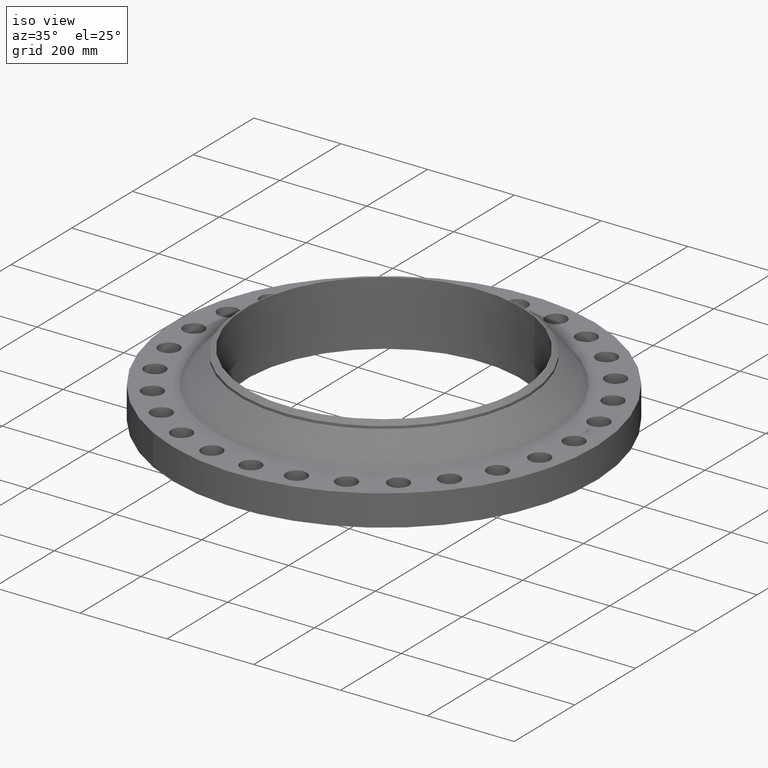
[diagram: clean part render]
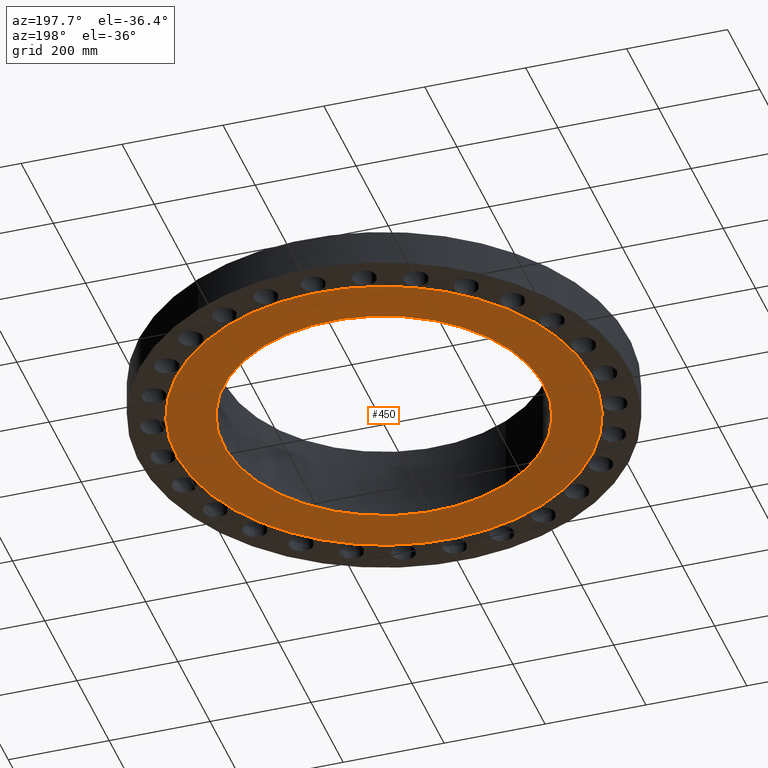
[diagram: tour spotlight — one face highlighted and labeled with its STEP entity id]
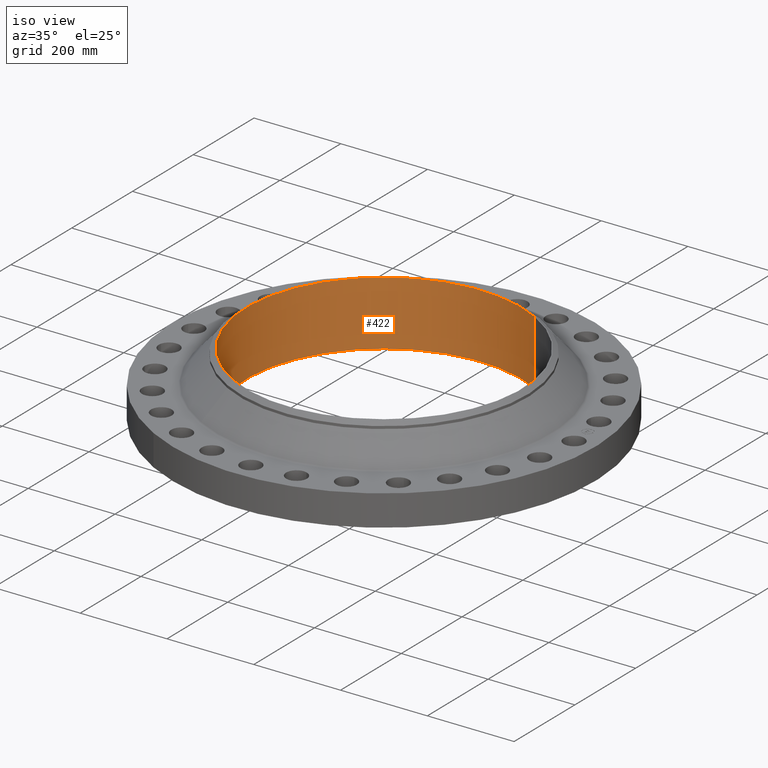
[diagram: tour spotlight — one face highlighted and labeled with its STEP entity id]
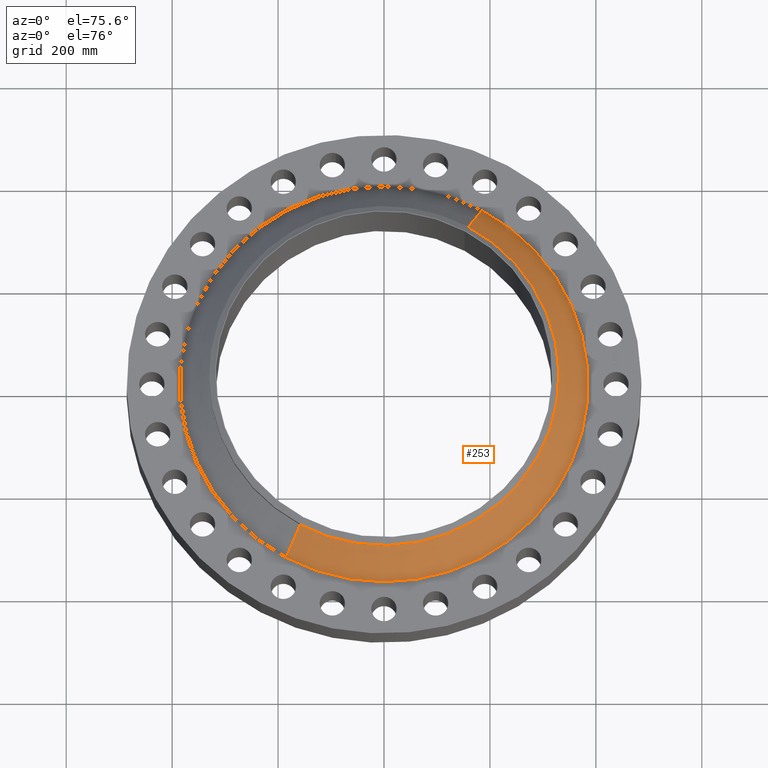
[diagram: tour spotlight — one face highlighted and labeled with its STEP entity id]
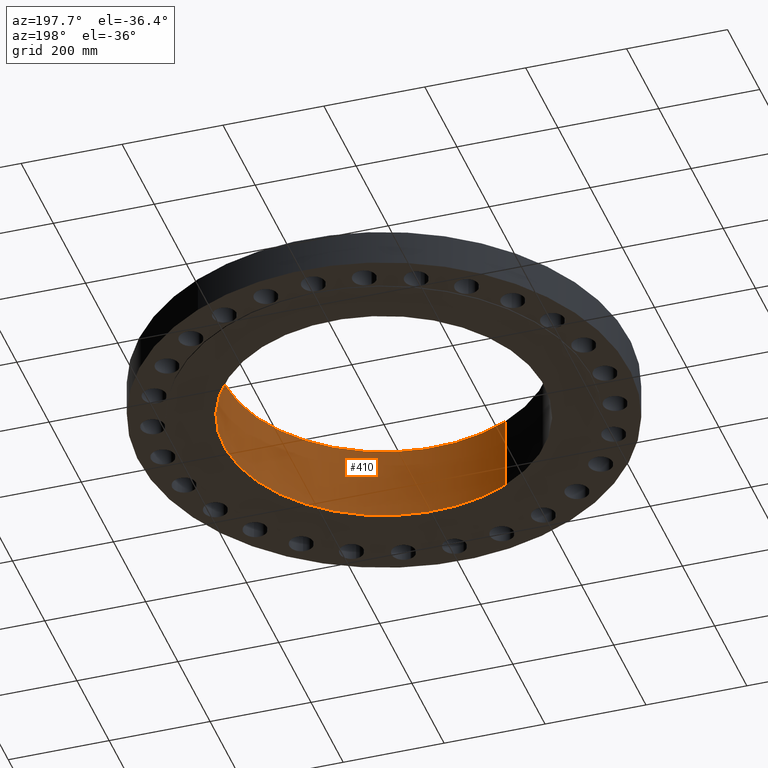
[diagram: tour spotlight — one face highlighted and labeled with its STEP entity id]
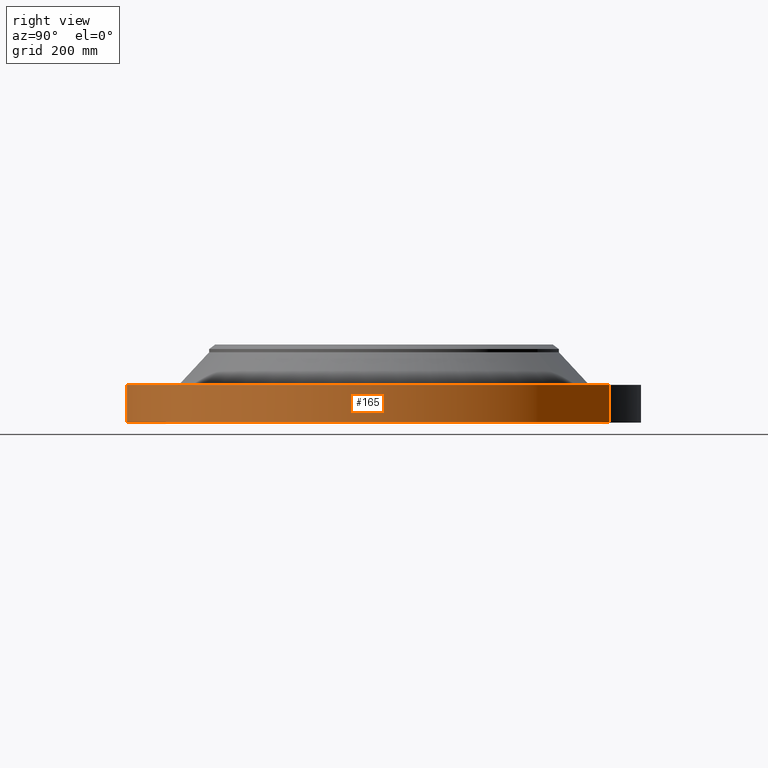
[diagram: tour spotlight — one face highlighted and labeled with its STEP entity id]
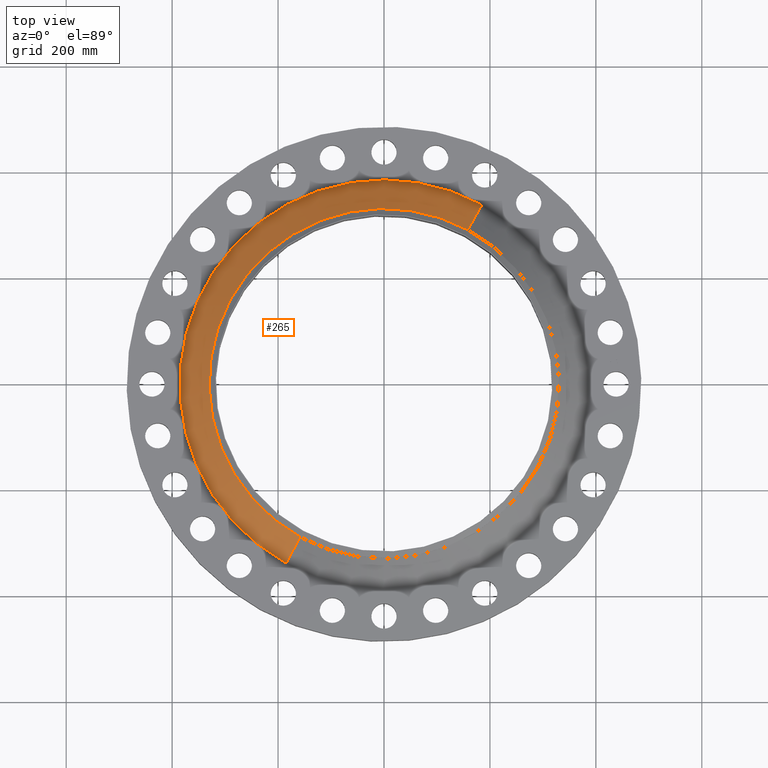
[diagram: tour spotlight — one face highlighted and labeled with its STEP entity id]
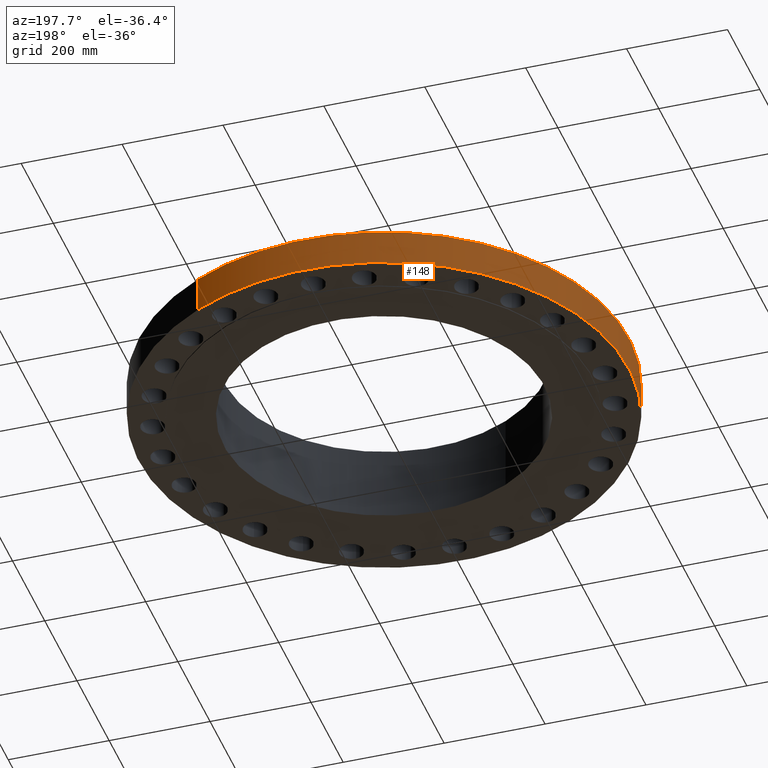
[diagram: tour spotlight — one face highlighted and labeled with its STEP entity id]
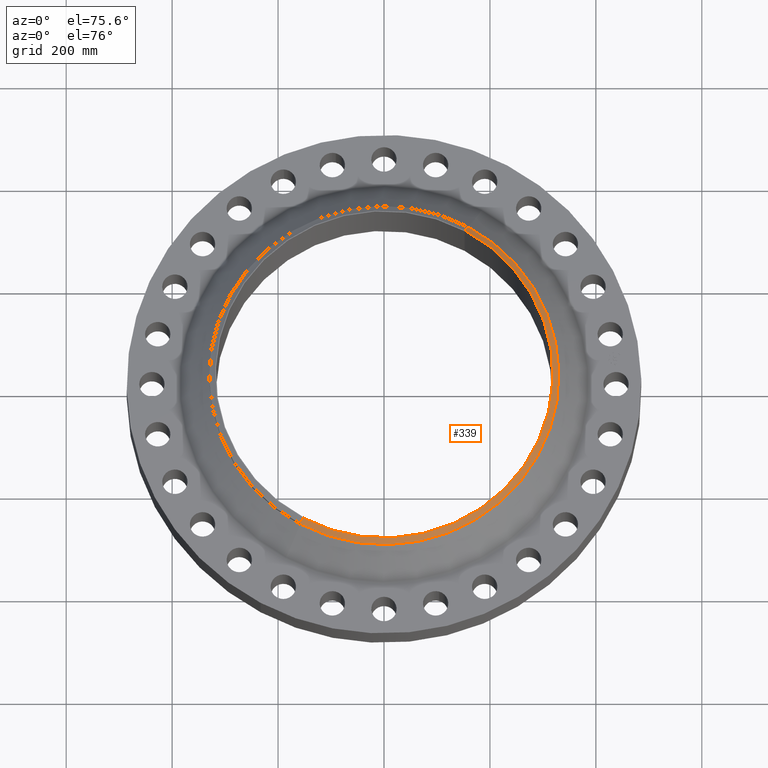
[diagram: tour spotlight — one face highlighted and labeled with its STEP entity id]
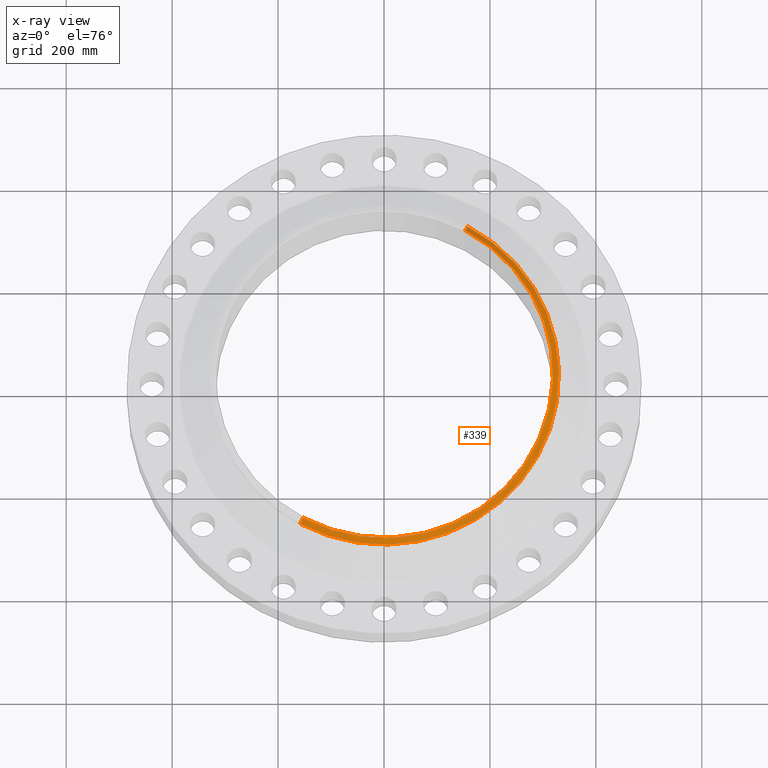
[diagram: x-ray of the same camera — body ghosted, this tour face saturated]
A machine part: a face-by-face anatomy tour. The part has 459 B-rep faces; the first image is the clean iso view, then the 8 largest visible faces are spotlighted one at a time (largest first), each with its STEP entity span.

Face 1 — auxiliary view, entity #450. In plain terms, the highlighted planar face has unit normal (0, 0, -1).
Definition (entity closure, byte-faithful):
#389=CARTESIAN_POINT('Vertex',(152.217608507,278.632463401,-1.58750000001)) ;
#392=CARTESIAN_POINT('Axis2P3D Location',(0.,0.,-1.58750000001)) ;
#396=CARTESIAN_POINT('Vertex',(-152.217608507,-278.632463401,-1.58750000001)) ;
#411=CARTESIAN_POINT('Axis2P3D Location',(0.,0.,-1.58750000001)) ;
#423=CARTESIAN_POINT('Axis2P3D Location',(0.,317.500000001,-1.58750000001)) ;
#428=CARTESIAN_POINT('Axis2P3D Location',(0.,0.,-1.58750000001)) ;
#432=CARTESIAN_POINT('Vertex',(-197.517568799,-361.55348451,-1.58750000001)) ;
#434=CARTESIAN_POINT('Vertex',(197.517568799,361.55348451,-1.58750000001)) ;
#437=CARTESIAN_POINT('Axis2P3D Location',(0.,0.,-1.58750000001)) ;
#393=DIRECTION('Axis2P3D Direction',(0.,0.,-1.)) ;
#412=DIRECTION('Axis2P3D Direction',(0.,0.,-1.)) ;
#424=DIRECTION('Axis2P3D Direction',(0.,0.,-1.)) ;
#425=DIRECTION('Axis2P3D XDirection',(1.,0.,0.)) ;
#429=DIRECTION('Axis2P3D Direction',(0.,0.,-1.)) ;
#438=DIRECTION('Axis2P3D Direction',(0.,0.,-1.)) ;
#394=AXIS2_PLACEMENT_3D('Circle Axis2P3D',#392,#393,$) ;
#413=AXIS2_PLACEMENT_3D('Circle Axis2P3D',#411,#412,$) ;
#426=AXIS2_PLACEMENT_3D('Plane Axis2P3D',#423,#424,#425) ;
#430=AXIS2_PLACEMENT_3D('Circle Axis2P3D',#428,#429,$) ;
#439=AXIS2_PLACEMENT_3D('Circle Axis2P3D',#437,#438,$) ;
#443=ORIENTED_EDGE('',*,*,#436,.T.) ;
#444=ORIENTED_EDGE('',*,*,#441,.T.) ;
#447=ORIENTED_EDGE('',*,*,#398,.F.) ;
#448=ORIENTED_EDGE('',*,*,#415,.F.) ;
#449=FACE_BOUND('',#446,.T.) ;
#450=ADVANCED_FACE('PartBody',(#445,#449),#427,.T.) ;
#395=CIRCLE('generated circle',#394,317.500000001) ;
#414=CIRCLE('generated circle',#413,317.500000001) ;
#431=CIRCLE('generated circle',#430,411.988000002) ;
#440=CIRCLE('generated circle',#439,411.988000002) ;
#398=EDGE_CURVE('',#390,#397,#395,.T.) ;
#415=EDGE_CURVE('',#397,#390,#414,.T.) ;
#436=EDGE_CURVE('',#433,#435,#431,.T.) ;
#441=EDGE_CURVE('',#435,#433,#440,.T.) ;
#442=EDGE_LOOP('',(#443,#444)) ;
#446=EDGE_LOOP('',(#447,#448)) ;
#445=FACE_OUTER_BOUND('',#442,.T.) ;
#427=PLANE('',#426) ;
#390=VERTEX_POINT('',#389) ;
#397=VERTEX_POINT('',#396) ;
#433=VERTEX_POINT('',#432) ;
#435=VERTEX_POINT('',#434) ;

Face 2 — iso view, entity #422. In plain terms, the highlighted cylindrical surface (partial cylindrical patch) has radius 317.5 mm, axis along (0, 0, -1).
Definition (entity closure, byte-faithful):
#361=CARTESIAN_POINT('Axis2P3D Location',(8.52651282912E-014,1.42108547152E-014,147.574000001)) ;
#365=CARTESIAN_POINT('Vertex',(-152.217608507,-278.632463401,147.574000001)) ;
#367=CARTESIAN_POINT('Vertex',(152.217608507,278.632463401,147.574000001)) ;
#380=CARTESIAN_POINT('Axis2P3D Location',(0.,0.,74.2632500003)) ;
#385=CARTESIAN_POINT('Line Origine',(152.217608507,278.632463401,74.2632500003)) ;
#389=CARTESIAN_POINT('Vertex',(152.217608507,278.632463401,-1.58750000001)) ;
#396=CARTESIAN_POINT('Vertex',(-152.217608507,-278.632463401,-1.58750000001)) ;
#399=CARTESIAN_POINT('Line Origine',(-152.217608507,-278.632463401,74.2632500003)) ;
#411=CARTESIAN_POINT('Axis2P3D Location',(0.,0.,-1.58750000001)) ;
#362=DIRECTION('Axis2P3D Direction',(0.,-0.,-1.)) ;
#381=DIRECTION('Axis2P3D Direction',(0.,0.,-1.)) ;
#382=DIRECTION('Axis2P3D XDirection',(0.479425538604,0.87758256189,0.)) ;
#386=DIRECTION('Vector Direction',(0.,0.,-1.)) ;
#400=DIRECTION('Vector Direction',(0.,0.,-1.)) ;
#412=DIRECTION('Axis2P3D Direction',(0.,0.,-1.)) ;
#363=AXIS2_PLACEMENT_3D('Circle Axis2P3D',#361,#362,$) ;
#383=AXIS2_PLACEMENT_3D('Cylinder Axis2P3D',#380,#381,#382) ;
#413=AXIS2_PLACEMENT_3D('Circle Axis2P3D',#411,#412,$) ;
#417=ORIENTED_EDGE('',*,*,#403,.T.) ;
#418=ORIENTED_EDGE('',*,*,#415,.T.) ;
#419=ORIENTED_EDGE('',*,*,#391,.F.) ;
#420=ORIENTED_EDGE('',*,*,#369,.F.) ;
#387=VECTOR('Line Direction',#386,1.) ;
#401=VECTOR('Line Direction',#400,1.) ;
#422=ADVANCED_FACE('PartBody',(#421),#384,.F.) ;
#364=CIRCLE('generated circle',#363,317.500000001) ;
#414=CIRCLE('generated circle',#413,317.500000001) ;
#384=CYLINDRICAL_SURFACE('generated cylinder',#383,317.500000001) ;
#369=EDGE_CURVE('',#366,#368,#364,.T.) ;
#391=EDGE_CURVE('',#368,#390,#388,.T.) ;
#403=EDGE_CURVE('',#366,#397,#402,.T.) ;
#415=EDGE_CURVE('',#397,#390,#414,.T.) ;
#416=EDGE_LOOP('',(#417,#418,#419,#420)) ;
#421=FACE_OUTER_BOUND('',#416,.T.) ;
#388=LINE('Line',#385,#387) ;
#402=LINE('Line',#399,#401) ;
#366=VERTEX_POINT('',#365) ;
#368=VERTEX_POINT('',#367) ;
#390=VERTEX_POINT('',#389) ;
#397=VERTEX_POINT('',#396) ;

Face 3 — auxiliary view, entity #253. In plain terms, the highlighted conical surface has half-angle 42.82 deg.
Definition (entity closure, byte-faithful):
#184=CARTESIAN_POINT('Vertex',(184.801884716,338.277580922,73.4079174829)) ;
#187=CARTESIAN_POINT('Axis2P3D Location',(0.,0.,73.4079174829)) ;
#191=CARTESIAN_POINT('Vertex',(-184.801884716,-338.277580922,73.4079174829)) ;
#223=CARTESIAN_POINT('Axis2P3D Location',(0.,0.,133.047078847)) ;
#228=CARTESIAN_POINT('Line Origine',(171.554098782,314.02767143,103.227498165)) ;
#232=CARTESIAN_POINT('Vertex',(158.306312848,289.777761937,133.047078847)) ;
#235=CARTESIAN_POINT('Axis2P3D Location',(0.,0.,133.047078847)) ;
#239=CARTESIAN_POINT('Vertex',(-158.306312848,-289.777761937,133.047078847)) ;
#242=CARTESIAN_POINT('Line Origine',(-171.554098782,-314.02767143,103.227498165)) ;
#188=DIRECTION('Axis2P3D Direction',(0.,0.,-1.)) ;
#224=DIRECTION('Axis2P3D Direction',(0.,0.,-1.)) ;
#225=DIRECTION('Axis2P3D XDirection',(0.479425538604,0.87758256189,0.)) ;
#229=DIRECTION('Vector Direction',(0.32586459615,0.596491142194,-0.733492046488)) ;
#236=DIRECTION('Axis2P3D Direction',(0.,0.,-1.)) ;
#243=DIRECTION('Vector Direction',(-0.32586459615,-0.596491142194,-0.733492046488)) ;
#189=AXIS2_PLACEMENT_3D('Circle Axis2P3D',#187,#188,$) ;
#226=AXIS2_PLACEMENT_3D('Cone Axis2P3D',#223,#224,#225) ;
#237=AXIS2_PLACEMENT_3D('Circle Axis2P3D',#235,#236,$) ;
#248=ORIENTED_EDGE('',*,*,#193,.F.) ;
#249=ORIENTED_EDGE('',*,*,#234,.T.) ;
#250=ORIENTED_EDGE('',*,*,#241,.T.) ;
#251=ORIENTED_EDGE('',*,*,#246,.F.) ;
#230=VECTOR('Line Direction',#229,1.) ;
#244=VECTOR('Line Direction',#243,1.) ;
#253=ADVANCED_FACE('PartBody',(#252),#227,.T.) ;
#190=CIRCLE('generated circle',#189,385.465249211) ;
#238=CIRCLE('generated circle',#237,330.200000001) ;
#227=CONICAL_SURFACE('Cone',#226,330.200000001,0.74735087369) ;
#193=EDGE_CURVE('',#185,#192,#190,.T.) ;
#234=EDGE_CURVE('',#185,#233,#231,.F.) ;
#241=EDGE_CURVE('',#233,#240,#238,.T.) ;
#246=EDGE_CURVE('',#192,#240,#245,.F.) ;
#247=EDGE_LOOP('',(#248,#249,#250,#251)) ;
#252=FACE_OUTER_BOUND('',#247,.T.) ;
#231=LINE('Line',#228,#230) ;
#245=LINE('Line',#242,#244) ;
#185=VERTEX_POINT('',#184) ;
#192=VERTEX_POINT('',#191) ;
#233=VERTEX_POINT('',#232) ;
#240=VERTEX_POINT('',#239) ;

Face 4 — auxiliary view, entity #410. In plain terms, the highlighted cylindrical surface (partial cylindrical patch) has radius 317.5 mm, axis along (0, 0, -1).
Definition (entity closure, byte-faithful):
#365=CARTESIAN_POINT('Vertex',(-152.217608507,-278.632463401,147.574000001)) ;
#367=CARTESIAN_POINT('Vertex',(152.217608507,278.632463401,147.574000001)) ;
#370=CARTESIAN_POINT('Axis2P3D Location',(-8.52651282912E-014,-6.39488462184E-014,147.574000001)) ;
#380=CARTESIAN_POINT('Axis2P3D Location',(0.,0.,74.2632500003)) ;
#385=CARTESIAN_POINT('Line Origine',(152.217608507,278.632463401,74.2632500003)) ;
#389=CARTESIAN_POINT('Vertex',(152.217608507,278.632463401,-1.58750000001)) ;
#392=CARTESIAN_POINT('Axis2P3D Location',(0.,0.,-1.58750000001)) ;
#396=CARTESIAN_POINT('Vertex',(-152.217608507,-278.632463401,-1.58750000001)) ;
#399=CARTESIAN_POINT('Line Origine',(-152.217608507,-278.632463401,74.2632500003)) ;
#371=DIRECTION('Axis2P3D Direction',(0.,-0.,-1.)) ;
#381=DIRECTION('Axis2P3D Direction',(0.,0.,-1.)) ;
#382=DIRECTION('Axis2P3D XDirection',(0.479425538604,0.87758256189,0.)) ;
#386=DIRECTION('Vector Direction',(0.,0.,-1.)) ;
#393=DIRECTION('Axis2P3D Direction',(0.,0.,-1.)) ;
#400=DIRECTION('Vector Direction',(0.,0.,-1.)) ;
#372=AXIS2_PLACEMENT_3D('Circle Axis2P3D',#370,#371,$) ;
#383=AXIS2_PLACEMENT_3D('Cylinder Axis2P3D',#380,#381,#382) ;
#394=AXIS2_PLACEMENT_3D('Circle Axis2P3D',#392,#393,$) ;
#405=ORIENTED_EDGE('',*,*,#391,.T.) ;
#406=ORIENTED_EDGE('',*,*,#398,.T.) ;
#407=ORIENTED_EDGE('',*,*,#403,.F.) ;
#408=ORIENTED_EDGE('',*,*,#374,.F.) ;
#387=VECTOR('Line Direction',#386,1.) ;
#401=VECTOR('Line Direction',#400,1.) ;
#410=ADVANCED_FACE('PartBody',(#409),#384,.F.) ;
#373=CIRCLE('generated circle',#372,317.500000001) ;
#395=CIRCLE('generated circle',#394,317.500000001) ;
#384=CYLINDRICAL_SURFACE('generated cylinder',#383,317.500000001) ;
#374=EDGE_CURVE('',#368,#366,#373,.T.) ;
#391=EDGE_CURVE('',#368,#390,#388,.T.) ;
#398=EDGE_CURVE('',#390,#397,#395,.T.) ;
#403=EDGE_CURVE('',#366,#397,#402,.T.) ;
#404=EDGE_LOOP('',(#405,#406,#407,#408)) ;
#409=FACE_OUTER_BOUND('',#404,.T.) ;
#388=LINE('Line',#385,#387) ;
#402=LINE('Line',#399,#401) ;
#366=VERTEX_POINT('',#365) ;
#368=VERTEX_POINT('',#367) ;
#390=VERTEX_POINT('',#389) ;
#397=VERTEX_POINT('',#396) ;

Face 5 — right view, entity #165. In plain terms, the highlighted cylindrical surface (partial cylindrical patch) has radius 485.775 mm, axis along (0, 0, -1).
Definition (entity closure, byte-faithful):
#109=CARTESIAN_POINT('Axis2P3D Location',(0.,0.,74.2632500003)) ;
#118=CARTESIAN_POINT('Vertex',(-232.892941016,-426.307669004,5.68434188608E-014)) ;
#120=CARTESIAN_POINT('Vertex',(232.892941016,426.307669004,5.68434188608E-014)) ;
#123=CARTESIAN_POINT('Line Origine',(-232.892941016,-426.307669004,35.6870000001)) ;
#127=CARTESIAN_POINT('Vertex',(-232.892941016,-426.307669004,71.3740000003)) ;
#134=CARTESIAN_POINT('Vertex',(232.892941016,426.307669004,71.3740000003)) ;
#137=CARTESIAN_POINT('Line Origine',(232.892941016,426.307669004,35.6870000001)) ;
#149=CARTESIAN_POINT('Axis2P3D Location',(0.,0.,5.68434188608E-014)) ;
#154=CARTESIAN_POINT('Axis2P3D Location',(0.,0.,71.3740000003)) ;
#110=DIRECTION('Axis2P3D Direction',(0.,0.,-1.)) ;
#111=DIRECTION('Axis2P3D XDirection',(0.479425538604,0.87758256189,0.)) ;
#124=DIRECTION('Vector Direction',(0.,0.,-1.)) ;
#138=DIRECTION('Vector Direction',(0.,0.,-1.)) ;
#150=DIRECTION('Axis2P3D Direction',(0.,0.,-1.)) ;
#155=DIRECTION('Axis2P3D Direction',(0.,0.,-1.)) ;
#112=AXIS2_PLACEMENT_3D('Cylinder Axis2P3D',#109,#110,#111) ;
#151=AXIS2_PLACEMENT_3D('Circle Axis2P3D',#149,#150,$) ;
#156=AXIS2_PLACEMENT_3D('Circle Axis2P3D',#154,#155,$) ;
#160=ORIENTED_EDGE('',*,*,#153,.F.) ;
#161=ORIENTED_EDGE('',*,*,#141,.T.) ;
#162=ORIENTED_EDGE('',*,*,#158,.T.) ;
#163=ORIENTED_EDGE('',*,*,#129,.F.) ;
#125=VECTOR('Line Direction',#124,1.) ;
#139=VECTOR('Line Direction',#138,1.) ;
#165=ADVANCED_FACE('PartBody',(#164),#113,.T.) ;
#152=CIRCLE('generated circle',#151,485.775000002) ;
#157=CIRCLE('generated circle',#156,485.775000002) ;
#113=CYLINDRICAL_SURFACE('generated cylinder',#112,485.775000002) ;
#129=EDGE_CURVE('',#119,#128,#126,.F.) ;
#141=EDGE_CURVE('',#121,#135,#140,.F.) ;
#153=EDGE_CURVE('',#121,#119,#152,.T.) ;
#158=EDGE_CURVE('',#135,#128,#157,.T.) ;
#159=EDGE_LOOP('',(#160,#161,#162,#163)) ;
#164=FACE_OUTER_BOUND('',#159,.T.) ;
#126=LINE('Line',#123,#125) ;
#140=LINE('Line',#137,#139) ;
#119=VERTEX_POINT('',#118) ;
#121=VERTEX_POINT('',#120) ;
#128=VERTEX_POINT('',#127) ;
#135=VERTEX_POINT('',#134) ;

Face 6 — top view, entity #265. In plain terms, the highlighted conical surface has half-angle 42.82 deg.
Definition (entity closure, byte-faithful):
#184=CARTESIAN_POINT('Vertex',(184.801884716,338.277580922,73.4079174829)) ;
#191=CARTESIAN_POINT('Vertex',(-184.801884716,-338.277580922,73.4079174829)) ;
#211=CARTESIAN_POINT('Axis2P3D Location',(0.,0.,73.4079174829)) ;
#223=CARTESIAN_POINT('Axis2P3D Location',(0.,0.,133.047078847)) ;
#228=CARTESIAN_POINT('Line Origine',(171.554098782,314.02767143,103.227498165)) ;
#232=CARTESIAN_POINT('Vertex',(158.306312848,289.777761937,133.047078847)) ;
#239=CARTESIAN_POINT('Vertex',(-158.306312848,-289.777761937,133.047078847)) ;
#242=CARTESIAN_POINT('Line Origine',(-171.554098782,-314.02767143,103.227498165)) ;
#254=CARTESIAN_POINT('Axis2P3D Location',(0.,0.,133.047078847)) ;
#212=DIRECTION('Axis2P3D Direction',(0.,0.,-1.)) ;
#224=DIRECTION('Axis2P3D Direction',(0.,0.,-1.)) ;
#225=DIRECTION('Axis2P3D XDirection',(0.479425538604,0.87758256189,0.)) ;
#229=DIRECTION('Vector Direction',(0.32586459615,0.596491142194,-0.733492046488)) ;
#243=DIRECTION('Vector Direction',(-0.32586459615,-0.596491142194,-0.733492046488)) ;
#255=DIRECTION('Axis2P3D Direction',(0.,0.,-1.)) ;
#213=AXIS2_PLACEMENT_3D('Circle Axis2P3D',#211,#212,$) ;
#226=AXIS2_PLACEMENT_3D('Cone Axis2P3D',#223,#224,#225) ;
#256=AXIS2_PLACEMENT_3D('Circle Axis2P3D',#254,#255,$) ;
#260=ORIENTED_EDGE('',*,*,#215,.F.) ;
#261=ORIENTED_EDGE('',*,*,#246,.T.) ;
#262=ORIENTED_EDGE('',*,*,#258,.T.) ;
#263=ORIENTED_EDGE('',*,*,#234,.F.) ;
#230=VECTOR('Line Direction',#229,1.) ;
#244=VECTOR('Line Direction',#243,1.) ;
#265=ADVANCED_FACE('PartBody',(#264),#227,.T.) ;
#214=CIRCLE('generated circle',#213,385.465249211) ;
#257=CIRCLE('generated circle',#256,330.200000001) ;
#227=CONICAL_SURFACE('Cone',#226,330.200000001,0.74735087369) ;
#215=EDGE_CURVE('',#192,#185,#214,.T.) ;
#234=EDGE_CURVE('',#185,#233,#231,.F.) ;
#246=EDGE_CURVE('',#192,#240,#245,.F.) ;
#258=EDGE_CURVE('',#240,#233,#257,.T.) ;
#259=EDGE_LOOP('',(#260,#261,#262,#263)) ;
#264=FACE_OUTER_BOUND('',#259,.T.) ;
#231=LINE('Line',#228,#230) ;
#245=LINE('Line',#242,#244) ;
#185=VERTEX_POINT('',#184) ;
#192=VERTEX_POINT('',#191) ;
#233=VERTEX_POINT('',#232) ;
#240=VERTEX_POINT('',#239) ;

Face 7 — auxiliary view, entity #148. In plain terms, the highlighted cylindrical surface (partial cylindrical patch) has radius 485.775 mm, axis along (0, 0, -1).
Definition (entity closure, byte-faithful):
#109=CARTESIAN_POINT('Axis2P3D Location',(0.,0.,74.2632500003)) ;
#114=CARTESIAN_POINT('Axis2P3D Location',(0.,0.,5.68434188608E-014)) ;
#118=CARTESIAN_POINT('Vertex',(-232.892941016,-426.307669004,5.68434188608E-014)) ;
#120=CARTESIAN_POINT('Vertex',(232.892941016,426.307669004,5.68434188608E-014)) ;
#123=CARTESIAN_POINT('Line Origine',(-232.892941016,-426.307669004,35.6870000001)) ;
#127=CARTESIAN_POINT('Vertex',(-232.892941016,-426.307669004,71.3740000003)) ;
#130=CARTESIAN_POINT('Axis2P3D Location',(0.,0.,71.3740000003)) ;
#134=CARTESIAN_POINT('Vertex',(232.892941016,426.307669004,71.3740000003)) ;
#137=CARTESIAN_POINT('Line Origine',(232.892941016,426.307669004,35.6870000001)) ;
#110=DIRECTION('Axis2P3D Direction',(0.,0.,-1.)) ;
#111=DIRECTION('Axis2P3D XDirection',(0.479425538604,0.87758256189,0.)) ;
#115=DIRECTION('Axis2P3D Direction',(0.,0.,-1.)) ;
#124=DIRECTION('Vector Direction',(0.,0.,-1.)) ;
#131=DIRECTION('Axis2P3D Direction',(0.,0.,-1.)) ;
#138=DIRECTION('Vector Direction',(0.,0.,-1.)) ;
#112=AXIS2_PLACEMENT_3D('Cylinder Axis2P3D',#109,#110,#111) ;
#116=AXIS2_PLACEMENT_3D('Circle Axis2P3D',#114,#115,$) ;
#132=AXIS2_PLACEMENT_3D('Circle Axis2P3D',#130,#131,$) ;
#143=ORIENTED_EDGE('',*,*,#122,.F.) ;
#144=ORIENTED_EDGE('',*,*,#129,.T.) ;
#145=ORIENTED_EDGE('',*,*,#136,.T.) ;
#146=ORIENTED_EDGE('',*,*,#141,.F.) ;
#125=VECTOR('Line Direction',#124,1.) ;
#139=VECTOR('Line Direction',#138,1.) ;
#148=ADVANCED_FACE('PartBody',(#147),#113,.T.) ;
#117=CIRCLE('generated circle',#116,485.775000002) ;
#133=CIRCLE('generated circle',#132,485.775000002) ;
#113=CYLINDRICAL_SURFACE('generated cylinder',#112,485.775000002) ;
#122=EDGE_CURVE('',#119,#121,#117,.T.) ;
#129=EDGE_CURVE('',#119,#128,#126,.F.) ;
#136=EDGE_CURVE('',#128,#135,#133,.T.) ;
#141=EDGE_CURVE('',#121,#135,#140,.F.) ;
#142=EDGE_LOOP('',(#143,#144,#145,#146)) ;
#147=FACE_OUTER_BOUND('',#142,.T.) ;
#126=LINE('Line',#123,#125) ;
#140=LINE('Line',#137,#139) ;
#119=VERTEX_POINT('',#118) ;
#121=VERTEX_POINT('',#120) ;
#128=VERTEX_POINT('',#127) ;
#135=VERTEX_POINT('',#134) ;

Face 8 — auxiliary view, entity #339. An x-ray twin of the same camera follows (body ghosted, this face saturated) — the face is partly hidden behind the body. In plain terms, the highlighted conical surface has half-angle 52.5 deg.
Definition (entity closure, byte-faithful):
#275=CARTESIAN_POINT('Vertex',(-158.306312848,-289.777761937,139.047078847)) ;
#282=CARTESIAN_POINT('Vertex',(158.306312848,289.777761937,139.047078847)) ;
#285=CARTESIAN_POINT('Axis2P3D Location',(0.,0.,139.047078847)) ;
#309=CARTESIAN_POINT('Axis2P3D Location',(0.,0.,147.574000001)) ;
#314=CARTESIAN_POINT('Line Origine',(157.016928991,287.417560619,141.110754958)) ;
#318=CARTESIAN_POINT('Vertex',(152.97869655,280.025625718,147.574000001)) ;
#321=CARTESIAN_POINT('Axis2P3D Location',(0.,0.,147.574000001)) ;
#325=CARTESIAN_POINT('Vertex',(-152.97869655,-280.025625718,147.574000001)) ;
#328=CARTESIAN_POINT('Line Origine',(-157.016928991,-287.417560619,141.110754958)) ;
#286=DIRECTION('Axis2P3D Direction',(0.,0.,-1.)) ;
#310=DIRECTION('Axis2P3D Direction',(-0.,-0.,-1.)) ;
#311=DIRECTION('Axis2P3D XDirection',(0.479425538604,0.87758256189,0.)) ;
#315=DIRECTION('Vector Direction',(0.380353852473,0.696233056857,-0.608761429009)) ;
#322=DIRECTION('Axis2P3D Direction',(0.,-0.,-1.)) ;
#329=DIRECTION('Vector Direction',(-0.380353852473,-0.696233056857,-0.608761429009)) ;
#287=AXIS2_PLACEMENT_3D('Circle Axis2P3D',#285,#286,$) ;
#312=AXIS2_PLACEMENT_3D('Cone Axis2P3D',#309,#310,#311) ;
#323=AXIS2_PLACEMENT_3D('Circle Axis2P3D',#321,#322,$) ;
#334=ORIENTED_EDGE('',*,*,#320,.F.) ;
#335=ORIENTED_EDGE('',*,*,#327,.T.) ;
#336=ORIENTED_EDGE('',*,*,#332,.T.) ;
#337=ORIENTED_EDGE('',*,*,#289,.F.) ;
#316=VECTOR('Line Direction',#315,1.) ;
#330=VECTOR('Line Direction',#329,1.) ;
#339=ADVANCED_FACE('PartBody',(#338),#313,.T.) ;
#288=CIRCLE('generated circle',#287,330.200000001) ;
#324=CIRCLE('generated circle',#323,319.087500001) ;
#313=CONICAL_SURFACE('Cone',#312,319.087500001,0.916297857297) ;
#289=EDGE_CURVE('',#283,#276,#288,.T.) ;
#320=EDGE_CURVE('',#319,#283,#317,.T.) ;
#327=EDGE_CURVE('',#319,#326,#324,.T.) ;
#332=EDGE_CURVE('',#326,#276,#331,.T.) ;
#333=EDGE_LOOP('',(#334,#335,#336,#337)) ;
#338=FACE_OUTER_BOUND('',#333,.T.) ;
#317=LINE('Line',#314,#316) ;
#331=LINE('Line',#328,#330) ;
#276=VERTEX_POINT('',#275) ;
#283=VERTEX_POINT('',#282) ;
#319=VERTEX_POINT('',#318) ;
#326=VERTEX_POINT('',#325) ;